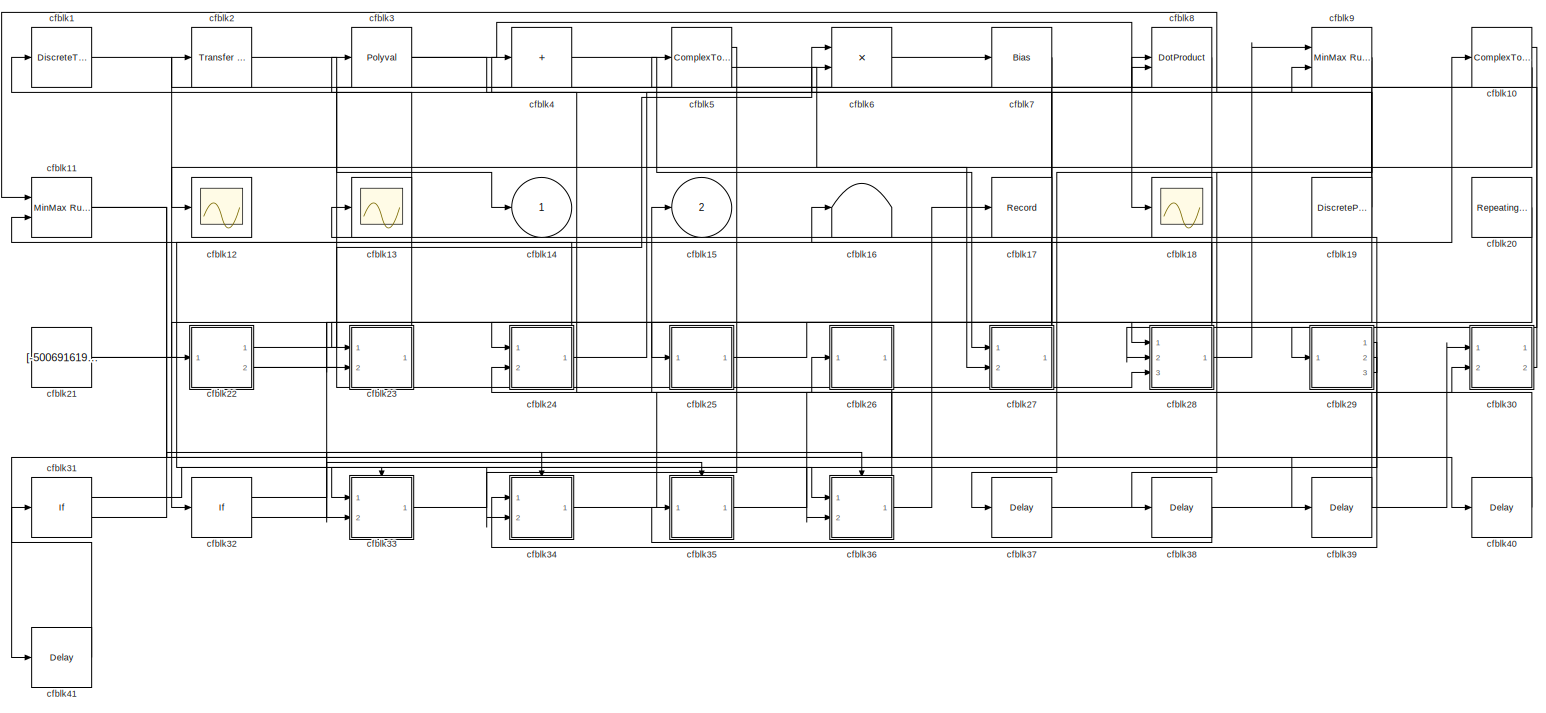
[diagram: root canvas - part 1/1, most of the canvas]
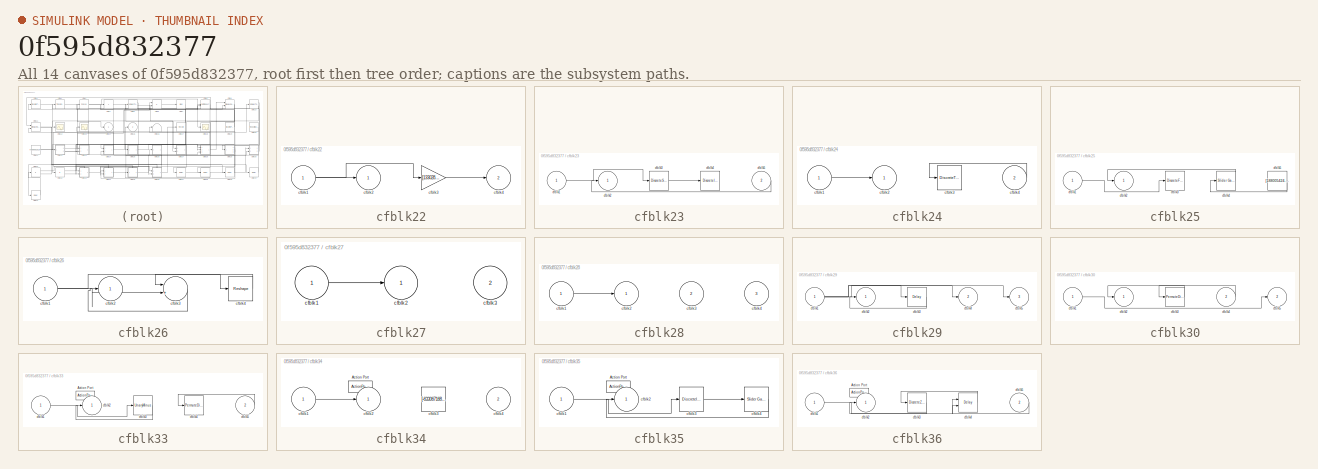
[diagram: thumbnail index - all 14 canvases of the model, root first then tree order]
MODEL slx_0f595d832377
KIND model
CONFIG AbsTol = auto
CONFIG EnableMultiTasking = off
CONFIG FixedStep = auto
CONFIG MaxStep = auto
CONFIG MinStep = auto
CONFIG RelTol = 1e-3
CONFIG SampleTimeConstraint = Unconstrained
CONFIG SolverName = VariableStepAuto
CONFIG StartTime = 0.0
CONFIG StopTime = 10.0
BLOCK [DiscreteTransferFcn] cfblk1
  InputPortMap = u0
  Ports = [1, 1]
  SampleTime = 1
BLOCK [ComplexToRealImag] cfblk10
  Ports = [1, 2]
BLOCK [Reference] cfblk11  REF=simulink/Math
Operations/MinMax
Running
Resettable
  Ports = [2, 1]
  SourceBlock = simulink/Math\nOperations/MinMax\nRunning\nResettable
  SourceProductBaseCode = SL
  SourceType = MinMax Running Resettable
BLOCK [Scope] cfblk12
  Floating = off
  NumInputPorts = 1
  Ports = [1]
BLOCK [Scope] cfblk13
  Floating = off
  NumInputPorts = 1
  Ports = [1]
BLOCK [Outport] cfblk14
BLOCK [Outport] cfblk15
  Port = 2
BLOCK [Terminator] cfblk16
BLOCK [Record] cfblk17
  FileSettingsInternal = {"entries":[{"content":{"excelSettings":{"content":{},"type":"Streamout.ExcelSettings"}},"type":"Streamout.FileSettingStorage","uuid":"28e4c51c-1937-41a0-a133-1cff96515ed7"}],"packageUris":["http://schema.mathworks.com/mf0/streamout_blocks/R2020a"],"version":"1.0"}
  Ports = [1]
  SignalsInternal = {"entries":[{"content":{"signals":[{"content":{"blockPath":["sampleModel213/cfblk17"],"channel":[],"dimensions":[1],"domain":"sampleModel213/cfblk17","lineColor":"#64d413","plots":[1],"port":1,"sid":[""],"signalID":8292,"signalName":"cfblk36"},"type":"RecordBlkView.Signal","uuid":"0845694e-0171-4560-bc0c-7199e26a6a20"}]},"type":"RecordBlkView.InputSignals","uuid":"2b9fda15-a465-4095-a7b0-130934ec0...<+97ch>
  VisualizationBindings = {"sparklinesplugin":{"info":[{"bindingParametersList":[],"subplotID":1}]}}
BLOCK [Scope] cfblk18
  Floating = off
  NumInputPorts = 1
  Ports = [1]
BLOCK [DiscretePulseGenerator] cfblk19
  Amplitude = [357934836.344518]
  Period = [18432357.661940]
  PhaseDelay = [3.000000]
  Ports = [0, 1]
  PulseType = Time based
  PulseWidth = 5
BLOCK [Reference] cfblk2  REF=simulink/Discrete/Transfer Fcn
Real Zero
  Ports = [1, 1]
  SourceBlock = simulink/Discrete/Transfer Fcn\nReal Zero
  SourceProductBaseCode = SL
  SourceType = Transfer Fcn Real Zero
BLOCK [Reference] cfblk20  REF=simulink/Sources/Repeating
Sequence
Interpolated
  Ports = [0, 1]
  SourceBlock = simulink/Sources/Repeating\nSequence\nInterpolated
  SourceProductBaseCode = SL
  SourceType = Repeating Sequence Interpolated
BLOCK [Constant] cfblk21
  SampleTime = 1
  Value = [-500691619.866370]
BLOCK [SubSystem] cfblk22
  Ports = [1, 2]
  RequestExecContextInheritance = off
BLOCK [Inport] cfblk22/cfblk1
BLOCK [Outport] cfblk22/cfblk2
BLOCK [Gain] cfblk22/cfblk3
  Gain = [133028783.916817]
BLOCK [Outport] cfblk22/cfblk4
  Port = 2
BLOCK [SubSystem] cfblk23
  Ports = [2, 1]
  RequestExecContextInheritance = off
BLOCK [Inport] cfblk23/cfblk1
BLOCK [Outport] cfblk23/cfblk2
BLOCK [DiscreteStateSpace] cfblk23/cfblk3
BLOCK [DiscreteIntegrator] cfblk23/cfblk4
  ICPrevOutput = DiscIntNeverNeededParam
  ICPrevScaledInput = DiscIntNeverNeededParam
  InitialConditionSetting = Auto
  Ports = [1, 1]
BLOCK [Inport] cfblk23/cfblk5
  Port = 2
BLOCK [SubSystem] cfblk24
  Ports = [2, 1]
  RequestExecContextInheritance = off
BLOCK [Inport] cfblk24/cfblk1
BLOCK [Outport] cfblk24/cfblk2
BLOCK [DiscreteTransferFcn] cfblk24/cfblk3
  InputPortMap = u0
  Ports = [1, 1]
  SampleTime = 1
BLOCK [Inport] cfblk24/cfblk4
  Port = 2
BLOCK [SubSystem] cfblk25
  Ports = [1, 1]
  RequestExecContextInheritance = off
BLOCK [Inport] cfblk25/cfblk1
BLOCK [Outport] cfblk25/cfblk2
BLOCK [DiscreteFilter] cfblk25/cfblk3
  InputPortMap = u0
  Ports = [1, 1]
  SampleTime = 1
BLOCK [Reference] cfblk25/cfblk4  REF=simulink/Math
Operations/Slider
Gain
  Ports = [1, 1]
  SourceBlock = simulink/Math\nOperations/Slider\nGain
  SourceProductBaseCode = SL
  SourceType = Slider Gain
BLOCK [Constant] cfblk25/cfblk5
  SampleTime = 1
  Value = [188005424.447279]
BLOCK [SubSystem] cfblk26
  Ports = [1, 1]
  RequestExecContextInheritance = off
BLOCK [Inport] cfblk26/cfblk1
BLOCK [Outport] cfblk26/cfblk2
BLOCK [Sum] cfblk26/cfblk3
  Inputs = |++
  Ports = [2, 1]
BLOCK [Reshape] cfblk26/cfblk4
  Ports = [1, 1]
BLOCK [SubSystem] cfblk27
  Ports = [2, 1]
  RequestExecContextInheritance = off
BLOCK [Inport] cfblk27/cfblk1
BLOCK [Outport] cfblk27/cfblk2
BLOCK [Inport] cfblk27/cfblk3
  Port = 2
BLOCK [SubSystem] cfblk28
  Ports = [3, 1]
  RequestExecContextInheritance = off
BLOCK [Inport] cfblk28/cfblk1
BLOCK [Outport] cfblk28/cfblk2
BLOCK [Inport] cfblk28/cfblk3
  Port = 2
BLOCK [Inport] cfblk28/cfblk4
  Port = 3
BLOCK [SubSystem] cfblk29
  Ports = [1, 3]
  RequestExecContextInheritance = off
BLOCK [Inport] cfblk29/cfblk1
BLOCK [Outport] cfblk29/cfblk2
BLOCK [Delay] cfblk29/cfblk3
  InputPortMap = u0
  Ports = [1, 1]
  SampleTime = 1
BLOCK [Outport] cfblk29/cfblk4
  Port = 2
BLOCK [Outport] cfblk29/cfblk5
  Port = 3
BLOCK [Polyval] cfblk3
  Coefs = [ +2.081618890e-019, -1.441693666e-014, +4.719686976e-010, -8.536869453e-006, +1.621573104e-001, -8.087801117e+001 ]
BLOCK [SubSystem] cfblk30
  Ports = [2, 2]
  RequestExecContextInheritance = off
BLOCK [Inport] cfblk30/cfblk1
BLOCK [Outport] cfblk30/cfblk2
BLOCK [PermuteDimensions] cfblk30/cfblk3
BLOCK [Inport] cfblk30/cfblk4
  Port = 2
BLOCK [Outport] cfblk30/cfblk5
  Port = 2
BLOCK [If] cfblk31
  IfExpression = u1 >= 0
  Ports = [1, 2]
  SampleTime = 1
BLOCK [If] cfblk32
  IfExpression = u1 >= 0
  Ports = [1, 2]
  SampleTime = 1
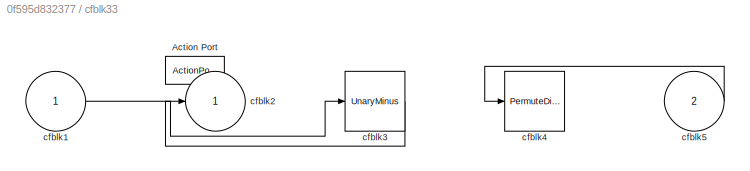
BLOCK [SubSystem] cfblk33
  Ports = [2, 1, 0, 0, 0, 0, 0, 1]
  RequestExecContextInheritance = off
  TreatAsAtomicUnit = on
BLOCK [ActionPort] cfblk33/Action Port
  ActionPortLabel = if(u1 >= 0)
BLOCK [Inport] cfblk33/cfblk1
BLOCK [Outport] cfblk33/cfblk2
BLOCK [UnaryMinus] cfblk33/cfblk3
BLOCK [PermuteDimensions] cfblk33/cfblk4
BLOCK [Inport] cfblk33/cfblk5
  Port = 2
BLOCK [SubSystem] cfblk34
  Ports = [2, 1, 0, 0, 0, 0, 0, 1]
  RequestExecContextInheritance = off
  TreatAsAtomicUnit = on
BLOCK [ActionPort] cfblk34/Action Port
  ActionPortLabel = else
BLOCK [Inport] cfblk34/cfblk1
BLOCK [Outport] cfblk34/cfblk2
BLOCK [Constant] cfblk34/cfblk3
  SampleTime = 1
  Value = [-633067168.372655]
BLOCK [Inport] cfblk34/cfblk4
  Port = 2
BLOCK [SubSystem] cfblk35
  Ports = [1, 1, 0, 0, 0, 0, 0, 1]
  RequestExecContextInheritance = off
  TreatAsAtomicUnit = on
BLOCK [ActionPort] cfblk35/Action Port
  ActionPortLabel = if(u1 >= 0)
BLOCK [Inport] cfblk35/cfblk1
BLOCK [Outport] cfblk35/cfblk2
BLOCK [DiscreteIntegrator] cfblk35/cfblk3
  ICPrevOutput = DiscIntNeverNeededParam
  ICPrevScaledInput = DiscIntNeverNeededParam
  InitialConditionSetting = Auto
  Ports = [1, 1]
  SampleTime = -1
BLOCK [Reference] cfblk35/cfblk4  REF=simulink/Math
Operations/Slider
Gain
  Ports = [1, 1]
  SourceBlock = simulink/Math\nOperations/Slider\nGain
  SourceProductBaseCode = SL
  SourceType = Slider Gain
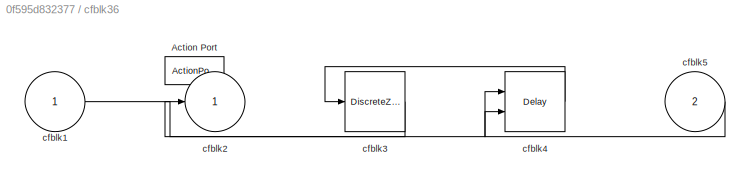
BLOCK [SubSystem] cfblk36
  Ports = [2, 1, 0, 0, 0, 0, 0, 1]
  RequestExecContextInheritance = off
  TreatAsAtomicUnit = on
BLOCK [ActionPort] cfblk36/Action Port
  ActionPortLabel = else
BLOCK [Inport] cfblk36/cfblk1
BLOCK [Outport] cfblk36/cfblk2
BLOCK [DiscreteZeroPole] cfblk36/cfblk3
  Gain = 1
  Poles = [0 0.5]
  SampleTime = -1
BLOCK [Delay] cfblk36/cfblk4
  DelayLengthSource = Input port
  InputPortMap = u0,p1
  Ports = [2, 1]
BLOCK [Inport] cfblk36/cfblk5
  Port = 2
BLOCK [Delay] cfblk37
  InputPortMap = u0
  Ports = [1, 1]
  SampleTime = 1
BLOCK [Delay] cfblk38
  InputPortMap = u0
  Ports = [1, 1]
  SampleTime = 1
BLOCK [Delay] cfblk39
  InputPortMap = u0
  Ports = [1, 1]
  SampleTime = 1
BLOCK [Sum] cfblk4
  IconShape = rectangular
  Inputs = +
  Ports = [1, 1]
BLOCK [Delay] cfblk40
  InputPortMap = u0
  Ports = [1, 1]
  SampleTime = 1
BLOCK [Delay] cfblk41
  InputPortMap = u0
  Ports = [1, 1]
  SampleTime = 1
BLOCK [ComplexToRealImag] cfblk5
  Ports = [1, 2]
BLOCK [Product] cfblk6
  Ports = [2, 1]
BLOCK [Bias] cfblk7
  Bias = [-870193700.468779]
  SaturateOnIntegerOverflow = off
BLOCK [DotProduct] cfblk8
  OutDataTypeStr = Inherit: Inherit via internal rule
BLOCK [Reference] cfblk9  REF=simulink/Math
Operations/MinMax
Running
Resettable
  Ports = [2, 1]
  SourceBlock = simulink/Math\nOperations/MinMax\nRunning\nResettable
  SourceProductBaseCode = SL
  SourceType = MinMax Running Resettable
LINE cfblk10:1 -> cfblk29:1
NET cfblk10:2 -> cfblk12:1, cfblk5:1
NET cfblk11:1 -> cfblk39:1, cfblk40:1
NET cfblk19:1 -> cfblk11:1, cfblk23:2, cfblk6:2
LINE cfblk1:1 -> cfblk32:1
LINE cfblk20:1 -> cfblk23:1
NET cfblk21:1 -> cfblk10:1, cfblk36:2
NET cfblk22/cfblk1:1 -> cfblk22/cfblk2:1, cfblk22/cfblk3:1
LINE cfblk22/cfblk3:1 -> cfblk22/cfblk4:1
LINE cfblk22:1 -> cfblk6:1
NET cfblk22:2 -> cfblk28:3, cfblk8:1
LINE cfblk23/cfblk1:1 -> cfblk23/cfblk3:1
LINE cfblk23/cfblk3:1 -> cfblk23/cfblk4:1
LINE cfblk23/cfblk5:1 -> cfblk23/cfblk2:1
LINE cfblk23:1 -> cfblk3:1
LINE cfblk24/cfblk1:1 -> cfblk24/cfblk2:1
LINE cfblk24/cfblk4:1 -> cfblk24/cfblk3:1
NET cfblk24:1 -> cfblk11:2, cfblk9:2
LINE cfblk25/cfblk1:1 -> cfblk25/cfblk3:1
LINE cfblk25/cfblk4:1 -> cfblk25/cfblk2:1
LINE cfblk25/cfblk5:1 -> cfblk25/cfblk4:1
LINE cfblk25:1 -> cfblk28:1
NET cfblk26/cfblk1:1 -> cfblk26/cfblk3:2, cfblk26/cfblk4:1
LINE cfblk26/cfblk3:1 -> cfblk26/cfblk2:1
LINE cfblk26/cfblk4:1 -> cfblk26/cfblk3:1
LINE cfblk26:1 -> cfblk41:1
LINE cfblk27/cfblk1:1 -> cfblk27/cfblk2:1
NET cfblk27:1 -> cfblk1:1, cfblk22:1
LINE cfblk28/cfblk1:1 -> cfblk28/cfblk2:1
NET cfblk28:1 -> cfblk16:1, cfblk9:1
NET cfblk29/cfblk1:1 -> cfblk29/cfblk3:1, cfblk29/cfblk4:1, cfblk29/cfblk5:1
LINE cfblk29/cfblk3:1 -> cfblk29/cfblk2:1
LINE cfblk29:1 -> cfblk34:1
LINE cfblk29:2 -> cfblk33:1
LINE cfblk29:3 -> cfblk13:1
LINE cfblk2:1 -> cfblk14:1
LINE cfblk30/cfblk1:1 -> cfblk30/cfblk5:1
LINE cfblk30/cfblk3:1 -> cfblk30/cfblk2:1
LINE cfblk30/cfblk4:1 -> cfblk30/cfblk3:1
LINE cfblk30:1 -> cfblk28:2
LINE cfblk30:2 -> cfblk2:1
LINE cfblk31:1 -> cfblk33:ifaction
LINE cfblk31:2 -> cfblk34:ifaction
LINE cfblk32:1 -> cfblk35:ifaction
LINE cfblk32:2 -> cfblk36:ifaction
LINE cfblk33/cfblk1:1 -> cfblk33/cfblk3:1
LINE cfblk33/cfblk3:1 -> cfblk33/cfblk2:1
LINE cfblk33/cfblk5:1 -> cfblk33/cfblk4:1
LINE cfblk33:1 -> cfblk36:1
LINE cfblk34/cfblk1:1 -> cfblk34/cfblk2:1
LINE cfblk34:1 -> cfblk26:1
LINE cfblk35/cfblk1:1 -> cfblk35/cfblk3:1
LINE cfblk35/cfblk3:1 -> cfblk35/cfblk4:1
LINE cfblk35/cfblk4:1 -> cfblk35/cfblk2:1
LINE cfblk35:1 -> cfblk30:2
LINE cfblk36/cfblk1:1 -> cfblk36/cfblk4:2
LINE cfblk36/cfblk3:1 -> cfblk36/cfblk2:1
LINE cfblk36/cfblk4:1 -> cfblk36/cfblk3:1
LINE cfblk36/cfblk5:1 -> cfblk36/cfblk4:1
NET cfblk36:1 -> cfblk15:1, cfblk17:1
LINE cfblk37:1 -> cfblk30:1
LINE cfblk38:1 -> cfblk35:1
LINE cfblk39:1 -> cfblk4:1
NET cfblk3:1 -> cfblk18:1, cfblk8:2
LINE cfblk40:1 -> cfblk24:2
LINE cfblk41:1 -> cfblk31:1
LINE cfblk4:1 -> cfblk27:1
LINE cfblk5:1 -> cfblk34:2
LINE cfblk5:2 -> cfblk27:2
LINE cfblk6:1 -> cfblk7:1
NET cfblk7:1 -> cfblk24:1, cfblk33:2
LINE cfblk8:1 -> cfblk25:1
NET cfblk9:1 -> cfblk37:1, cfblk38:1
note: NET lines group one-source signal fan-out (src -> all destinations, sorted); 1:1 wires keep LINE
